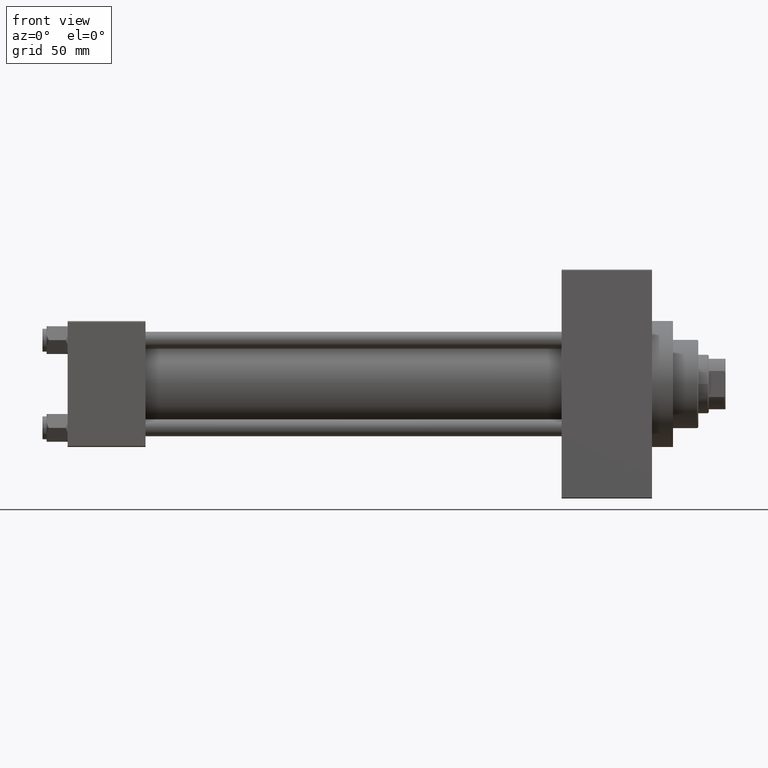
[diagram: clean part render]
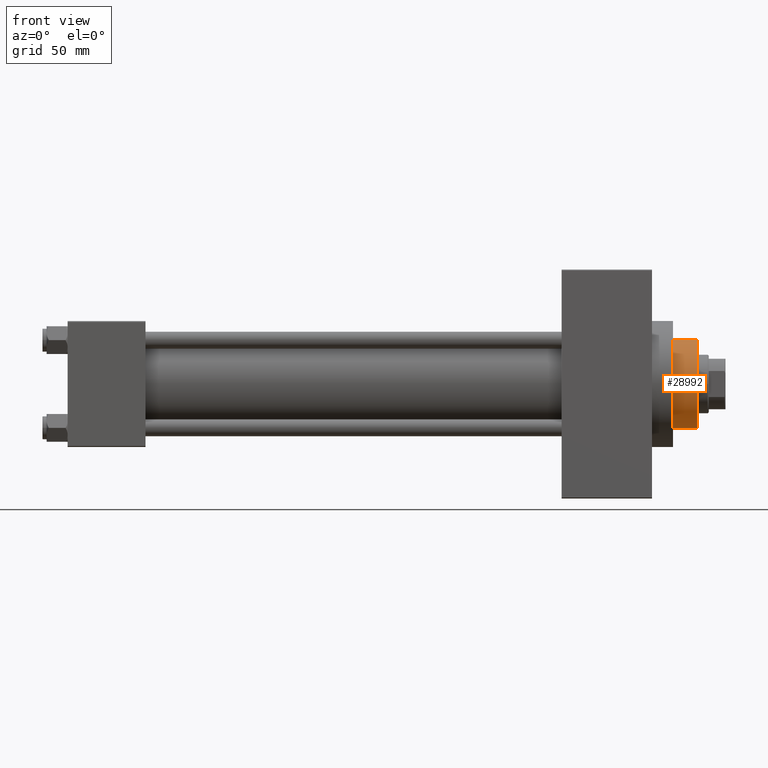
[diagram: same view with one face highlighted and labeled with its STEP entity id]
A machine part, front view. The second image highlights one B-rep face of the part: STEP entity #28992.
In plain terms, the highlighted cylindrical surface (partial cylindrical patch) has radius 21 mm, axis along (-1, 0, 0).
Its self-contained STEP definition (entity closure, byte-faithful):
#102 = DIRECTION ( 'NONE',  ( 1.000000000000000000, 0.000000000000000000, 0.000000000000000000 ) ) ;
#805 = EDGE_CURVE ( 'NONE', #19852, #32847, #34899, .T. ) ;
#1898 = CARTESIAN_POINT ( 'NONE',  ( 21.00000000000000000, 2.571758278209441661E-15, 55.26000000000000512 ) ) ;
#2013 = CYLINDRICAL_SURFACE ( 'NONE', #31551, 21.00000000000000000 ) ;
#2753 = DIRECTION ( 'NONE',  ( 0.000000000000000000, 0.000000000000000000, 1.000000000000000000 ) ) ;
#3974 = CARTESIAN_POINT ( 'NONE',  ( 0.000000000000000000, 0.000000000000000000, 43.25999999999999801 ) ) ;
#4680 = AXIS2_PLACEMENT_3D ( 'NONE', #21723, #2753, #25099 ) ;
#5640 = VERTEX_POINT ( 'NONE', #14754 ) ;
#7038 = VERTEX_POINT ( 'NONE', #29666 ) ;
#7068 = EDGE_CURVE ( 'NONE', #19852, #40537, #18380, .T. ) ;
#8154 = ORIENTED_EDGE ( 'NONE', *, *, #7068, .T. ) ;
#8389 = DIRECTION ( 'NONE',  ( -0.000000000000000000, -0.000000000000000000, -1.000000000000000000 ) ) ;
#9688 = CARTESIAN_POINT ( 'NONE',  ( 0.000000000000000000, 0.000000000000000000, 55.26000000000000512 ) ) ;
#12936 = ORIENTED_EDGE ( 'NONE', *, *, #41837, .T. ) ;
#13490 = VERTEX_POINT ( 'NONE', #21370 ) ;
#14058 = EDGE_CURVE ( 'NONE', #7038, #5640, #29250, .T. ) ;
#14754 = CARTESIAN_POINT ( 'NONE',  ( -20.96385542168674831, 1.231570484631382412, 43.25999999999999801 ) ) ;
#16521 = CIRCLE ( 'NONE', #24206, 21.00000000000000000 ) ;
#17041 = DIRECTION ( 'NONE',  ( 0.000000000000000000, 0.000000000000000000, 1.000000000000000000 ) ) ;
#17418 = VECTOR ( 'NONE', #31288, 1000.000000000000000 ) ;
#18380 = CIRCLE ( 'NONE', #39897, 21.00000000000000000 ) ;
#19107 = DIRECTION ( 'NONE',  ( 0.000000000000000000, 0.000000000000000000, 1.000000000000000000 ) ) ;
#19852 = VERTEX_POINT ( 'NONE', #43325 ) ;
#21247 = ORIENTED_EDGE ( 'NONE', *, *, #39280, .T. ) ;
#21370 = CARTESIAN_POINT ( 'NONE',  ( 21.00000000000000000, 2.571758278209441661E-15, 43.25999999999999801 ) ) ;
#21723 = CARTESIAN_POINT ( 'NONE',  ( 0.000000000000000000, 0.000000000000000000, 43.25999999999999801 ) ) ;
#23156 = EDGE_LOOP ( 'NONE', ( #8154, #42892, #12936, #38563, #21247, #44366 ) ) ;
#23363 = CARTESIAN_POINT ( 'NONE',  ( -21.00000000000000000, 0.000000000000000000, 55.26000000000000512 ) ) ;
#23413 = CARTESIAN_POINT ( 'NONE',  ( 21.00000000000000000, 2.571758278209441661E-15, 54.75999999999999091 ) ) ;
#24206 = AXIS2_PLACEMENT_3D ( 'NONE', #42042, #17041, #24733 ) ;
#24733 = DIRECTION ( 'NONE',  ( 1.000000000000000000, 0.000000000000000000, 0.000000000000000000 ) ) ;
#25099 = DIRECTION ( 'NONE',  ( 1.000000000000000000, 0.000000000000000000, 0.000000000000000000 ) ) ;
#27723 = FACE_OUTER_BOUND ( 'NONE', #23156, .T. ) ;
#28992 = ADVANCED_FACE ( 'NONE', ( #27723 ), #2013, .T. ) ;
#29250 = CIRCLE ( 'NONE', #4680, 21.00000000000000000 ) ;
#29666 = CARTESIAN_POINT ( 'NONE',  ( 20.96385542168674831, 1.231570484631385076, 43.25999999999999801 ) ) ;
#30976 = LINE ( 'NONE', #1898, #34020 ) ;
#31094 = DIRECTION ( 'NONE',  ( -0.000000000000000000, -0.000000000000000000, -1.000000000000000000 ) ) ;
#31288 = DIRECTION ( 'NONE',  ( -0.000000000000000000, -0.000000000000000000, -1.000000000000000000 ) ) ;
#31551 = AXIS2_PLACEMENT_3D ( 'NONE', #9688, #31094, #42376 ) ;
#32567 = CARTESIAN_POINT ( 'NONE',  ( 0.000000000000000000, 0.000000000000000000, 54.75999999999999091 ) ) ;
#32847 = VERTEX_POINT ( 'NONE', #35578 ) ;
#34020 = VECTOR ( 'NONE', #8389, 1000.000000000000000 ) ;
#34397 = EDGE_CURVE ( 'NONE', #40537, #13490, #30976, .T. ) ;
#34899 = LINE ( 'NONE', #23363, #17418 ) ;
#35578 = CARTESIAN_POINT ( 'NONE',  ( -21.00000000000000000, 0.000000000000000000, 43.25999999999999801 ) ) ;
#38563 = ORIENTED_EDGE ( 'NONE', *, *, #14058, .T. ) ;
#39280 = EDGE_CURVE ( 'NONE', #5640, #32847, #16521, .T. ) ;
#39897 = AXIS2_PLACEMENT_3D ( 'NONE', #32567, #46983, #102 ) ;
#40537 = VERTEX_POINT ( 'NONE', #23413 ) ;
#41837 = EDGE_CURVE ( 'NONE', #13490, #7038, #46442, .T. ) ;
#42042 = CARTESIAN_POINT ( 'NONE',  ( 0.000000000000000000, 0.000000000000000000, 43.25999999999999801 ) ) ;
#42376 = DIRECTION ( 'NONE',  ( -1.000000000000000000, 0.000000000000000000, 0.000000000000000000 ) ) ;
#42581 = AXIS2_PLACEMENT_3D ( 'NONE', #3974, #19107, #43873 ) ;
#42892 = ORIENTED_EDGE ( 'NONE', *, *, #34397, .T. ) ;
#43325 = CARTESIAN_POINT ( 'NONE',  ( -21.00000000000000000, 0.000000000000000000, 54.75999999999999091 ) ) ;
#43873 = DIRECTION ( 'NONE',  ( 1.000000000000000000, 0.000000000000000000, 0.000000000000000000 ) ) ;
#44366 = ORIENTED_EDGE ( 'NONE', *, *, #805, .F. ) ;
#46442 = CIRCLE ( 'NONE', #42581, 21.00000000000000000 ) ;
#46983 = DIRECTION ( 'NONE',  ( 0.000000000000000000, 0.000000000000000000, -1.000000000000000000 ) ) ;